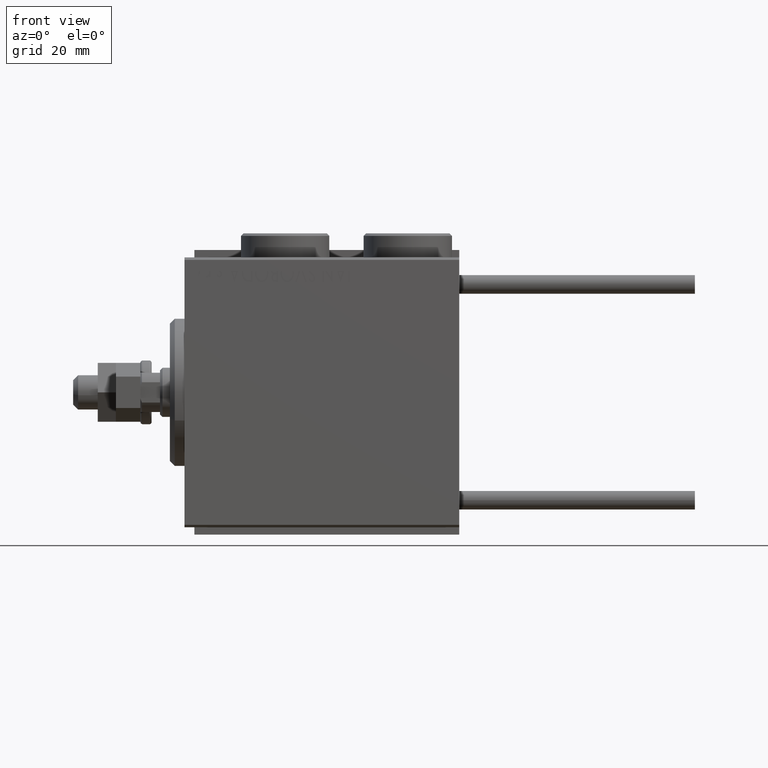
[diagram: clean part render]
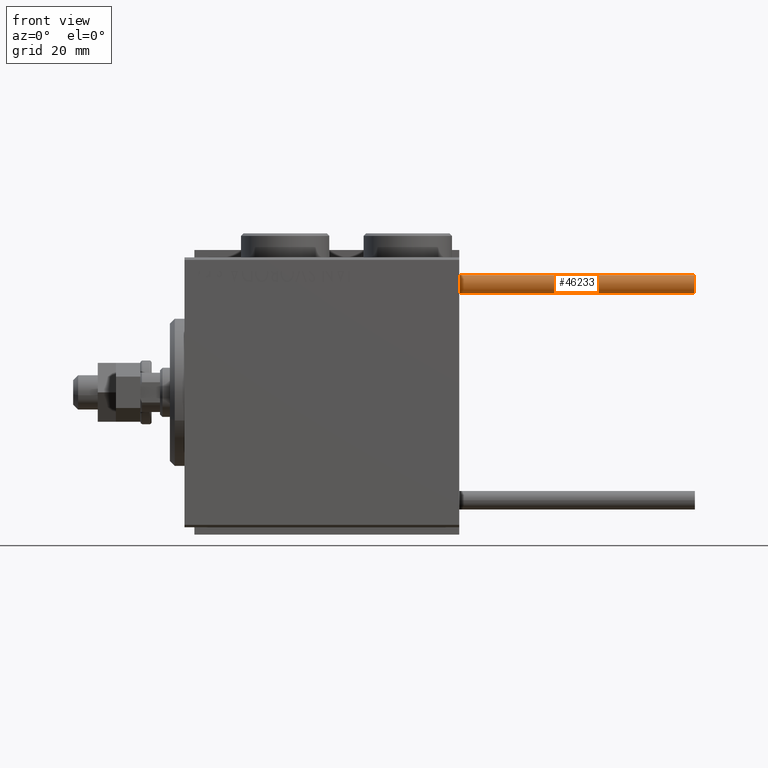
[diagram: same view with one face highlighted and labeled with its STEP entity id]
A machine part, front view. The second image highlights one B-rep face of the part: STEP entity #46233.
In plain terms, the highlighted cylindrical surface (edge-blend (fillet) strip) has radius 1.9 mm, axis along (-1, -0, 0).
Its self-contained STEP definition (entity closure, byte-faithful):
#798 = CARTESIAN_POINT ( 'NONE',  ( -1.899999999999999467, 0.000000000000000000, 48.00000000000000000 ) ) ;
#1207 = CARTESIAN_POINT ( 'NONE',  ( 0.000000000000000000, 0.000000000000000000, 0.000000000000000000 ) ) ;
#2178 = ORIENTED_EDGE ( 'NONE', *, *, #28254, .T. ) ;
#2801 = DIRECTION ( 'NONE',  ( 0.000000000000000000, 0.000000000000000000, 1.000000000000000000 ) ) ;
#7293 = CARTESIAN_POINT ( 'NONE',  ( 1.899999999999999467, 2.326828918379970872E-16, 48.00000000000000000 ) ) ;
#7493 = AXIS2_PLACEMENT_3D ( 'NONE', #38201, #10336, #26248 ) ;
#8662 = VECTOR ( 'NONE', #16536, 1000.000000000000000 ) ;
#10336 = DIRECTION ( 'NONE',  ( -0.000000000000000000, -0.000000000000000000, -1.000000000000000000 ) ) ;
#10596 = FACE_OUTER_BOUND ( 'NONE', #12433, .T. ) ;
#10676 = CIRCLE ( 'NONE', #46459, 1.899999999999999467 ) ;
#12433 = EDGE_LOOP ( 'NONE', ( #30376, #42506, #2178, #36027 ) ) ;
#14217 = EDGE_CURVE ( 'NONE', #20511, #23090, #23352, .T. ) ;
#14250 = DIRECTION ( 'NONE',  ( 1.000000000000000000, 0.000000000000000000, 0.000000000000000000 ) ) ;
#16536 = DIRECTION ( 'NONE',  ( -0.000000000000000000, -0.000000000000000000, -1.000000000000000000 ) ) ;
#19226 = AXIS2_PLACEMENT_3D ( 'NONE', #1207, #49405, #28829 ) ;
#20511 = VERTEX_POINT ( 'NONE', #29514 ) ;
#23090 = VERTEX_POINT ( 'NONE', #51204 ) ;
#23352 = CIRCLE ( 'NONE', #19226, 1.899999999999999467 ) ;
#25133 = VERTEX_POINT ( 'NONE', #798 ) ;
#25162 = LINE ( 'NONE', #41024, #8662 ) ;
#26248 = DIRECTION ( 'NONE',  ( -1.000000000000000000, 0.000000000000000000, 0.000000000000000000 ) ) ;
#27132 = VERTEX_POINT ( 'NONE', #7293 ) ;
#27168 = VECTOR ( 'NONE', #35361, 1000.000000000000000 ) ;
#27306 = LINE ( 'NONE', #38232, #27168 ) ;
#28254 = EDGE_CURVE ( 'NONE', #25133, #20511, #25162, .T. ) ;
#28829 = DIRECTION ( 'NONE',  ( 1.000000000000000000, 0.000000000000000000, 0.000000000000000000 ) ) ;
#29514 = CARTESIAN_POINT ( 'NONE',  ( -1.899999999999999467, 0.000000000000000000, 0.000000000000000000 ) ) ;
#30376 = ORIENTED_EDGE ( 'NONE', *, *, #37871, .F. ) ;
#35361 = DIRECTION ( 'NONE',  ( -0.000000000000000000, -0.000000000000000000, -1.000000000000000000 ) ) ;
#36027 = ORIENTED_EDGE ( 'NONE', *, *, #14217, .T. ) ;
#37871 = EDGE_CURVE ( 'NONE', #27132, #23090, #27306, .T. ) ;
#38201 = CARTESIAN_POINT ( 'NONE',  ( 0.000000000000000000, 0.000000000000000000, 48.00000000000000000 ) ) ;
#38232 = CARTESIAN_POINT ( 'NONE',  ( 1.899999999999999467, 2.326828918379970872E-16, 48.00000000000000000 ) ) ;
#41024 = CARTESIAN_POINT ( 'NONE',  ( -1.899999999999999467, 0.000000000000000000, 48.00000000000000000 ) ) ;
#41373 = CARTESIAN_POINT ( 'NONE',  ( 0.000000000000000000, 0.000000000000000000, 48.00000000000000000 ) ) ;
#42198 = EDGE_CURVE ( 'NONE', #25133, #27132, #10676, .T. ) ;
#42506 = ORIENTED_EDGE ( 'NONE', *, *, #42198, .F. ) ;
#46233 = ADVANCED_FACE ( 'NONE', ( #10596 ), #49956, .T. ) ;
#46459 = AXIS2_PLACEMENT_3D ( 'NONE', #41373, #2801, #14250 ) ;
#49405 = DIRECTION ( 'NONE',  ( 0.000000000000000000, 0.000000000000000000, 1.000000000000000000 ) ) ;
#49956 = CYLINDRICAL_SURFACE ( 'NONE', #7493, 1.899999999999999467 ) ;
#51204 = CARTESIAN_POINT ( 'NONE',  ( 1.899999999999999467, 2.326828918379970872E-16, 0.000000000000000000 ) ) ;